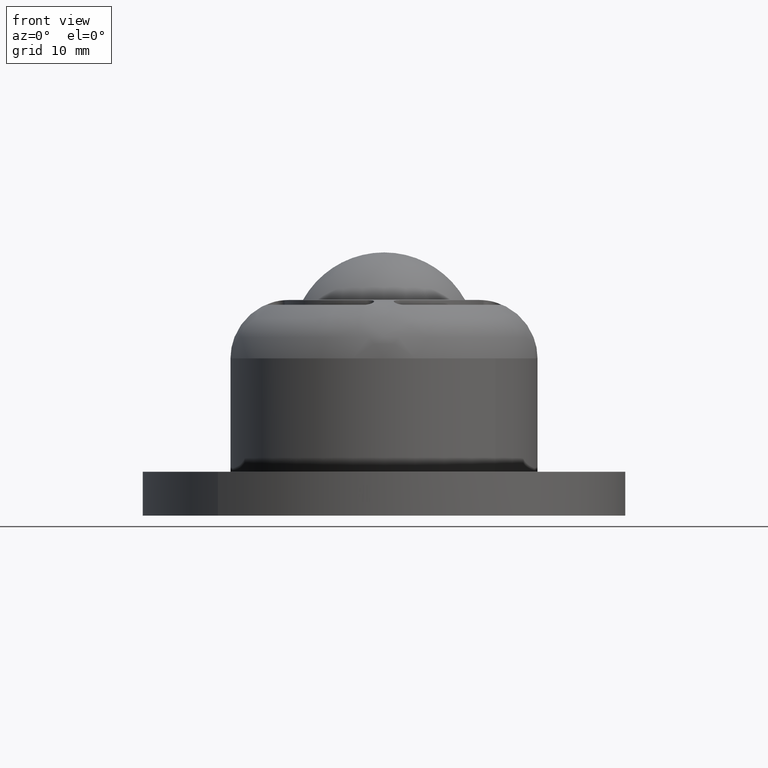
[diagram: clean part render]
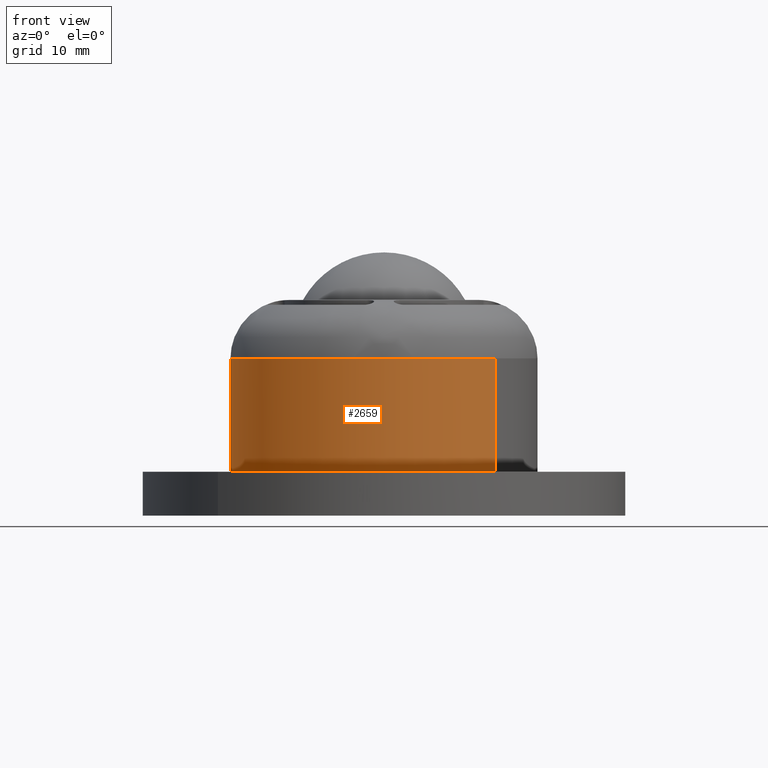
[diagram: same view with one face highlighted and labeled with its STEP entity id]
A machine part, front view. The second image highlights one B-rep face of the part: STEP entity #2659.
In plain terms, the highlighted face is a freeform B-spline surface patch.
Its self-contained STEP definition (entity closure, byte-faithful):
#2321=CARTESIAN_POINT('',(-20.999999999968871,-1.751003E-015,21.499984220875621));
#2322=VERTEX_POINT('',#2321);
#2376=CARTESIAN_POINT('',(-15.232861643121829,14.455445939827619,21.499984220875650));
#2377=VERTEX_POINT('',#2376);
#2389=CARTESIAN_POINT('',(-20.999999999968871,-1.751003E-015,21.499984220875621));
#2390=CARTESIAN_POINT('',(-21.000031693631851,0.913434651165049,21.499984220875611));
#2391=CARTESIAN_POINT('',(-20.875203569461490,2.823338843208960,21.499984220875589));
#2392=CARTESIAN_POINT('',(-20.299952695355511,5.637263797672597,21.499984220875721));
#2393=CARTESIAN_POINT('',(-19.367272830396072,8.264948744305507,21.499984220875412));
#2394=CARTESIAN_POINT('',(-17.827024925331639,11.307973815415860,21.499984220875870));
#2395=CARTESIAN_POINT('',(-16.347806839377739,13.281106226718320,21.499984220875511));
#2396=CARTESIAN_POINT('',(-15.232861643121829,14.455445939827619,21.499984220875650));
#2397=B_SPLINE_CURVE_WITH_KNOTS('',3,(#2389,#2390,#2391,#2392,#2393,#2394,#2395,#2396),.UNSPECIFIED.,.F.,.U.,(4,1,1,1,1,4),(0.000000011891737,2.740304505466527,5.729741187643885,8.594584685180713,11.085786022832471,15.943606001660640),.UNSPECIFIED.);
#2398=EDGE_CURVE('',#2322,#2377,#2397,.T.);
#2445=CARTESIAN_POINT('',(-0.000000843222146,-20.999999999999989,21.499984220875739));
#2446=VERTEX_POINT('',#2445);
#2447=CARTESIAN_POINT('',(-0.000000843222146,-20.999999999999989,21.499984220875739));
#2448=CARTESIAN_POINT('',(-0.987878002636031,-21.000039399452760,21.499984220875739));
#2449=CARTESIAN_POINT('',(-2.877727755781937,-20.866406785183070,21.499984220875739));
#2450=CARTESIAN_POINT('',(-5.321524497174980,-20.356859721574690,21.499984220875710));
#2451=CARTESIAN_POINT('',(-8.021202340580290,-19.483463386408140,21.499984220875639));
#2452=CARTESIAN_POINT('',(-10.700615750288399,-18.185908877398852,21.499984220875898));
#2453=CARTESIAN_POINT('',(-13.189714431690341,-16.409741411962429,21.499984220875291));
#2454=CARTESIAN_POINT('',(-15.249276568873549,-14.519930991245310,21.499984220876151));
#2455=CARTESIAN_POINT('',(-17.253573766355991,-12.152902414019501,21.499984220875010));
#2456=CARTESIAN_POINT('',(-18.891573789379699,-9.362136920602278,21.499984220876769));
#2457=CARTESIAN_POINT('',(-19.953576764433581,-6.682230540979518,21.499984220875440));
#2458=CARTESIAN_POINT('',(-20.759094129398822,-3.736674424448339,21.499984220875682));
#2459=CARTESIAN_POINT('',(-21.000277545219021,-1.503324161122507,21.499984220875120));
#2460=CARTESIAN_POINT('',(-20.999999999968871,-1.751003E-015,21.499984220875621));
#2461=B_SPLINE_CURVE_WITH_KNOTS('',3,(#2447,#2448,#2449,#2450,#2451,#2452,#2453,#2454,#2455,#2456,#2457,#2458,#2459,#2460),.UNSPECIFIED.,.F.,.U.,(4,1,1,1,1,1,1,1,1,1,1,4),(0.000000045600274,2.963631017728375,5.669590140528381,7.473562621336335,11.468071764210929,14.560570139792070,16.622213932718179,19.843599171237791,23.838097934805649,26.286342955832222,28.476879858175788,32.986774134000797),.UNSPECIFIED.);
#2462=EDGE_CURVE('',#2446,#2322,#2461,.T.);
#2464=CARTESIAN_POINT('',(15.232861643121829,-14.455445939827619,21.499984220875831));
#2465=VERTEX_POINT('',#2464);
#2466=CARTESIAN_POINT('',(15.232861643121829,-14.455445939827619,21.499984220875831));
#2467=CARTESIAN_POINT('',(14.408040595956949,-15.324768958329560,21.499984220875781));
#2468=CARTESIAN_POINT('',(13.042086494804270,-16.537126333616740,21.499984220875859));
#2469=CARTESIAN_POINT('',(10.909563929108151,-17.983535976331741,21.499984220875842));
#2470=CARTESIAN_POINT('',(8.839675292848190,-19.108262436319279,21.499984220875760));
#2471=CARTESIAN_POINT('',(6.396237687151368,-20.067500955670049,21.499984220875771));
#2472=CARTESIAN_POINT('',(3.373080961944562,-20.810294668843490,21.499984220875909));
#2473=CARTESIAN_POINT('',(1.242738240590368,-21.000132863809341,21.499984220875529));
#2474=CARTESIAN_POINT('',(-0.000000843222146,-20.999999999999989,21.499984220875739));
#2475=B_SPLINE_CURVE_WITH_KNOTS('',3,(#2466,#2467,#2468,#2469,#2470,#2471,#2472,#2473,#2474),.UNSPECIFIED.,.F.,.U.,(4,1,1,1,1,1,4),(0.000000012252418,3.595043741773974,5.459145604141881,7.722701104722098,10.651979774136541,13.314976240957209,17.043169457967650),.UNSPECIFIED.);
#2476=EDGE_CURVE('',#2465,#2446,#2475,.T.);
#2525=CARTESIAN_POINT('',(-15.232861643181540,14.455445939783020,6.000000000000069));
#2526=VERTEX_POINT('',#2525);
#2541=CARTESIAN_POINT('',(-15.232861643121829,14.455445939827619,21.499984220875650));
#2542=CARTESIAN_POINT('',(-15.232861643181540,14.455445939783020,6.000000000000069));
#2543=QUASI_UNIFORM_CURVE('',1,(#2541,#2542),.UNSPECIFIED.,.F.,.U.);
#2544=EDGE_CURVE('',#2377,#2526,#2543,.T.);
#2549=CARTESIAN_POINT('',(15.232861643181550,-14.455445939783020,6.000000000000068));
#2550=VERTEX_POINT('',#2549);
#2551=CARTESIAN_POINT('',(15.232861643121829,-14.455445939827619,21.499984220875831));
#2552=CARTESIAN_POINT('',(15.232861643181550,-14.455445939783020,6.000000000000068));
#2553=QUASI_UNIFORM_CURVE('',1,(#2551,#2552),.UNSPECIFIED.,.F.,.U.);
#2554=EDGE_CURVE('',#2465,#2550,#2553,.T.);
#2590=CARTESIAN_POINT('',(15.232861791258040,-14.455446089568831,21.887483826397759));
#2591=CARTESIAN_POINT('',(0.777415701689209,-29.688307880826869,21.887483826397759));
#2592=CARTESIAN_POINT('',(-14.455446089568831,-15.232861791258040,21.887483826397759));
#2593=CARTESIAN_POINT('',(-29.688307880826869,-0.777415701689209,21.887483826397759));
#2594=CARTESIAN_POINT('',(-15.232861791258040,14.455446089568831,21.887483826397759));
#2595=CARTESIAN_POINT('',(15.232861791258040,-14.455446089568831,5.602812904340054));
#2596=CARTESIAN_POINT('',(0.777415701689209,-29.688307880826869,5.602812904340055));
#2597=CARTESIAN_POINT('',(-14.455446089568831,-15.232861791258040,5.602812904340054));
#2598=CARTESIAN_POINT('',(-29.688307880826869,-0.777415701689209,5.602812904340055));
#2599=CARTESIAN_POINT('',(-15.232861791258040,14.455446089568831,5.602812904340054));
#2607=(BOUNDED_SURFACE()B_SPLINE_SURFACE(2,1,((#2590,#2595),(#2591,#2596),(#2592,#2597),(#2593,#2598),(#2594,#2599)),.UNSPECIFIED.,.F.,.F.,.U.)B_SPLINE_SURFACE_WITH_KNOTS((3,2,3),(2,2),(0.0,34.793939239339970,69.587878478679940),(0.0,16.284670922057710),.UNSPECIFIED.)GEOMETRIC_REPRESENTATION_ITEM()RATIONAL_B_SPLINE_SURFACE(((1.0,1.0),(0.707106781186548,0.707106781186548),(1.0,1.0),(0.707106781186548,0.707106781186548),(1.0,1.0)))REPRESENTATION_ITEM('')SURFACE());
#2608=CARTESIAN_POINT('',(-21.0,0.0,6.0));
#2609=VERTEX_POINT('',#2608);
#2610=CARTESIAN_POINT('',(-21.0,0.0,6.0));
#2611=CARTESIAN_POINT('',(-21.000046060200880,1.037994485425545,6.000000000000004));
#2612=CARTESIAN_POINT('',(-20.842707558816560,3.155492219069073,6.000000000000009));
#2613=CARTESIAN_POINT('',(-20.172640071963801,6.077970018518968,6.000000000000016));
#2614=CARTESIAN_POINT('',(-19.193079713833232,8.642907992878737,6.000000000000052));
#2615=CARTESIAN_POINT('',(-17.704860076371130,11.478182753069390,6.000000000000034));
#2616=CARTESIAN_POINT('',(-16.290530893816172,13.341256107561939,6.000000000000053));
#2617=CARTESIAN_POINT('',(-15.232861643181540,14.455445939783020,6.000000000000069));
#2618=B_SPLINE_CURVE_WITH_KNOTS('',3,(#2610,#2611,#2612,#2613,#2614,#2615,#2616,#2617),.UNSPECIFIED.,.F.,.U.,(4,1,1,1,1,4),(0.000000011892970,3.113983027937570,6.352532161860779,8.968264497758160,11.334904491316269,15.943606001603371),.UNSPECIFIED.);
#2619=EDGE_CURVE('',#2609,#2526,#2618,.T.);
#2620=ORIENTED_EDGE('',*,*,#2619,.F.);
#2621=CARTESIAN_POINT('',(-0.000000843222148,-20.999999999999989,6.0));
#2622=VERTEX_POINT('',#2621);
#2623=CARTESIAN_POINT('',(-0.000000843222148,-20.999999999999989,6.0));
#2624=CARTESIAN_POINT('',(-1.159683166015820,-21.000066808682028,6.000000000000004));
#2625=CARTESIAN_POINT('',(-3.650869151428752,-20.793197473459600,6.000000000000008));
#2626=CARTESIAN_POINT('',(-6.860770824655611,-19.936666946462200,5.999999999999985));
#2627=CARTESIAN_POINT('',(-9.814768510502518,-18.637962236909409,6.000000000000036));
#2628=CARTESIAN_POINT('',(-12.019399981305170,-17.288837196923389,5.999999999999913));
#2629=CARTESIAN_POINT('',(-14.033818575988780,-15.676542258017530,6.000000000000157));
#2630=CARTESIAN_POINT('',(-15.773259174492321,-13.947795459371720,5.999999999999965));
#2631=CARTESIAN_POINT('',(-17.229929538782638,-12.081219642727850,6.000000000000014));
#2632=CARTESIAN_POINT('',(-18.515408643308149,-9.994956380441790,5.999999999999993));
#2633=CARTESIAN_POINT('',(-19.738052088568939,-7.430804743995328,6.000000000000002));
#2634=CARTESIAN_POINT('',(-20.745884493295780,-3.994440477791318,6.000000000000015));
#2635=CARTESIAN_POINT('',(-21.000153607338628,-1.331497196285030,5.999999999999864));
#2636=CARTESIAN_POINT('',(-21.0,0.0,6.0));
#2637=B_SPLINE_CURVE_WITH_KNOTS('',3,(#2623,#2624,#2625,#2626,#2627,#2628,#2629,#2630,#2631,#2632,#2633,#2634,#2635,#2636),.UNSPECIFIED.,.F.,.U.,(4,1,1,1,1,1,1,1,1,1,1,4),(0.000000045559489,3.479053599853668,7.473562621314191,9.921805857620772,13.143168873924790,15.204869829571820,17.653047934025800,20.487859477767572,22.291831913884010,24.997791020740731,28.992301742769850,32.986774134032267),.UNSPECIFIED.);
#2638=EDGE_CURVE('',#2622,#2609,#2637,.T.);
#2639=ORIENTED_EDGE('',*,*,#2638,.F.);
#2640=CARTESIAN_POINT('',(15.232861643181550,-14.455445939783020,6.000000000000068));
#2641=CARTESIAN_POINT('',(14.408033951275581,-15.324757082738399,6.000000000000073));
#2642=CARTESIAN_POINT('',(12.609019254948009,-16.921605106754821,6.000000000000035));
#2643=CARTESIAN_POINT('',(9.958521171318544,-18.564185411601681,6.000000000000077));
#2644=CARTESIAN_POINT('',(7.481526561513130,-19.665694367446939,5.999999999999999));
#2645=CARTESIAN_POINT('',(5.534485621445479,-20.290854374349411,6.000000000000052));
#2646=CARTESIAN_POINT('',(3.018018628697832,-20.841921468184282,5.999999999999972));
#2647=CARTESIAN_POINT('',(1.242740310608221,-21.000137711394281,6.000000000000055));
#2648=CARTESIAN_POINT('',(-0.000000843222148,-20.999999999999989,6.0));
#2649=B_SPLINE_CURVE_WITH_KNOTS('',3,(#2640,#2641,#2642,#2643,#2644,#2645,#2646,#2647,#2648),.UNSPECIFIED.,.F.,.U.,(4,1,1,1,1,1,4),(0.000000012249629,3.595043741788706,7.190099555667501,9.320467910331612,11.717178646733970,13.314976241017609,17.043169458044972),.UNSPECIFIED.);
#2650=EDGE_CURVE('',#2550,#2622,#2649,.T.);
#2651=ORIENTED_EDGE('',*,*,#2650,.F.);
#2652=ORIENTED_EDGE('',*,*,#2554,.F.);
#2653=ORIENTED_EDGE('',*,*,#2476,.T.);
#2654=ORIENTED_EDGE('',*,*,#2462,.T.);
#2655=ORIENTED_EDGE('',*,*,#2398,.T.);
#2656=ORIENTED_EDGE('',*,*,#2544,.T.);
#2657=EDGE_LOOP('',(#2620,#2639,#2651,#2652,#2653,#2654,#2655,#2656));
#2658=FACE_OUTER_BOUND('',#2657,.T.);
#2659=ADVANCED_FACE('',(#2658),#2607,.T.);